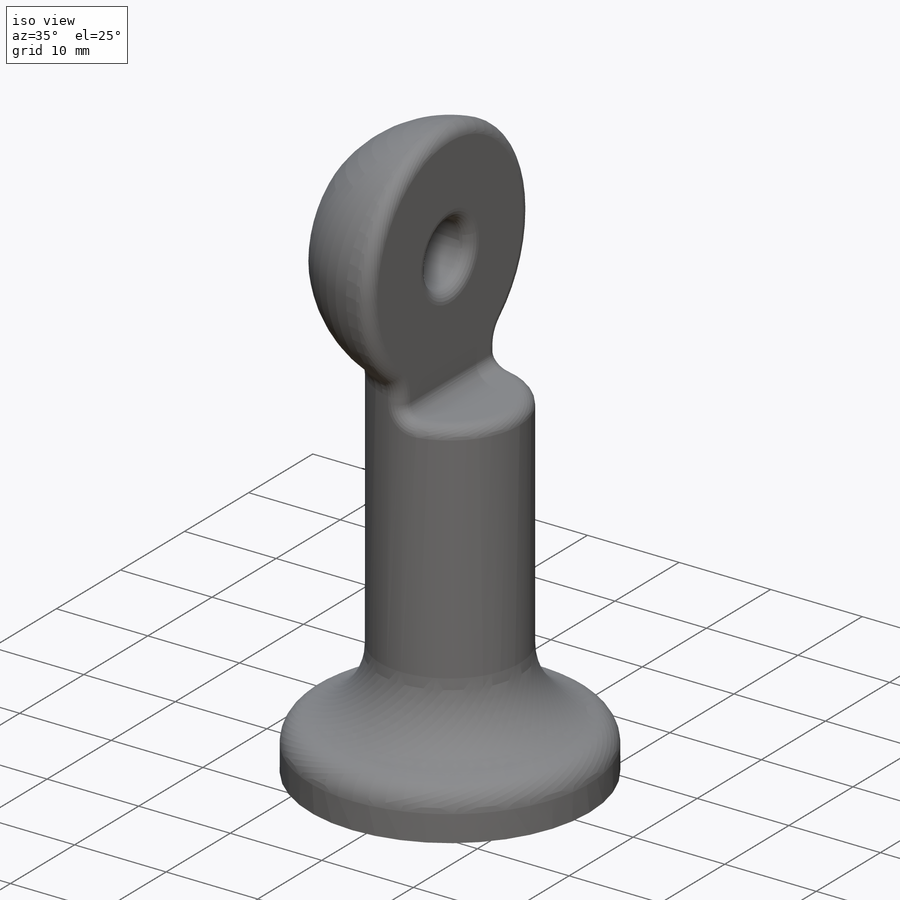
[diagram: iso view]
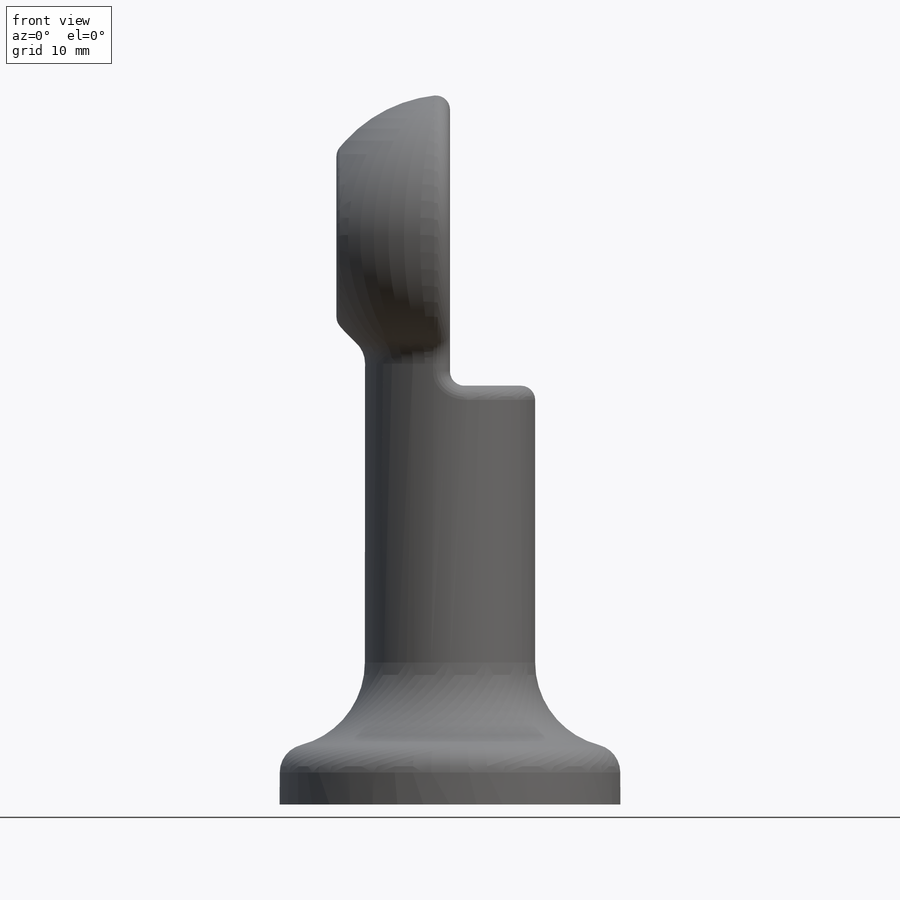
[diagram: front view]
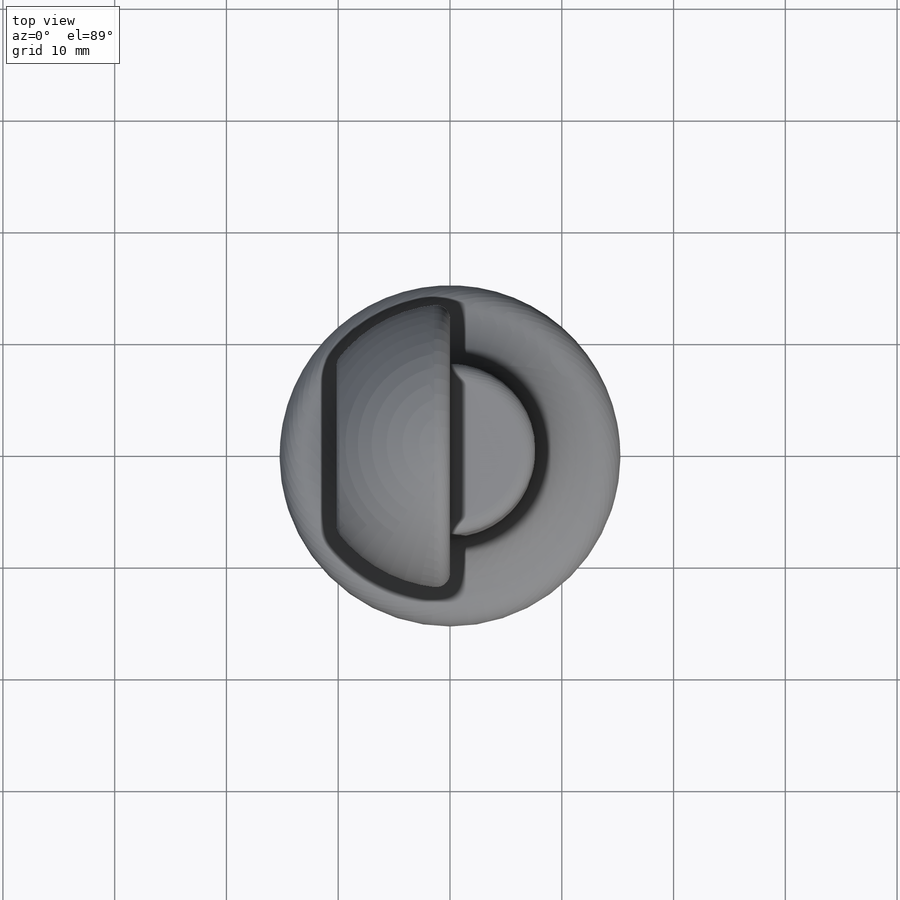
[diagram: top view]
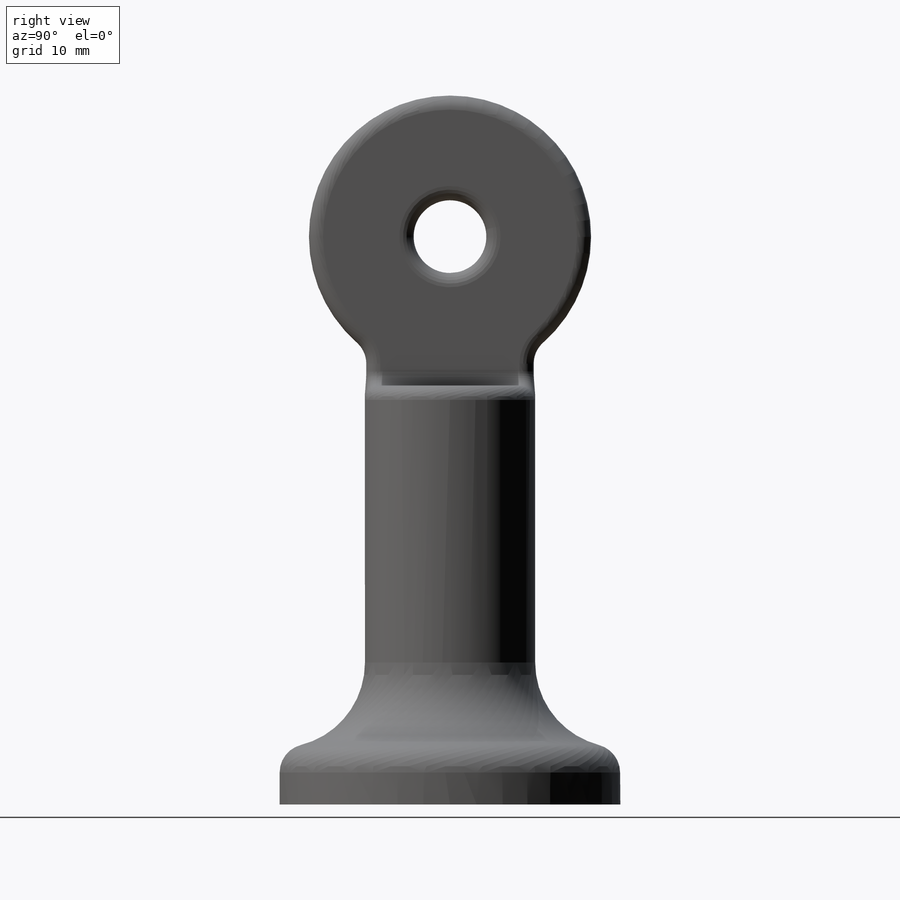
[diagram: right view]
SOLIDWORKS PART (.sldprt)
format: sldprt  version: not decoded by parser v0  size: 371,712 bytes
history: native  units: mm
features: sketch x8, extrude x2, boolean_combine x2, hole x2, fillet x2, material x1, revolve x1, plane x1, thread x1 (+15 scaffold rows collapsed)
feature tree (35):
  scaffold x15  (default folders/planes/origin — collapsed)
  material  "Material <not specified>"
  sketch  "Sketch1"  dims[c1.D5=12.7mm c1.D6=12.7mm c1.D7=7.62mm c1.D1=63.5mm c1.D2=33.02mm c1.D3=50.8mm c1.D4=78.74mm c2.D1=7.62mm c2.D2=63.5mm c2.D4=15.24mm c2.D6=12.7mm c2.D8=12.7mm]
  revolve  "Revolve1"  Angle=360deg
  sketch  "Sketch2"  dims[D1=50.8mm D2=25.4mm D3=13.335mm]
  extrude  "Boss-Extrude1"  Depth=25.4mm
  boolean_combine  "Combine1"
  sketch  "Sketch3"  dims[D1=50.8mm]
  hole  "#97 (0.0059) Diameter Hole3"  Diameter=6.5278mm Depth=15.24mm
  sketch  "Sketch9"  dims[D1=~5.263626mm]
  sketch  "Sketch8"  dims[hole-wizard template sketch: 60 standard entries collapsed; hole parameters kept: c18.Thru Hole Depth=15.24mm]
  plane  "Plane1"  Offset=10.16mm
  sketch  "Sketch10"  dims[D1=25.4mm D2=25.4mm]
  extrude  "Boss-Extrude2"  Depth=25.4mm
  boolean_combine  "Combine2"
  hole  "1/4-20 Tapped Hole1"  Diameter=5.1054mm Depth=19.05mm
  sketch  "Sketch16"
  sketch  "Sketch15"  dims[hole-wizard template sketch: 50 standard entries collapsed; hole parameters above]
  thread  "Hole Thread1"  Diameter=19.05mm  [1 undecoded]
  fillet  "Fillet1"  Radius=2.54mm
  fillet  "Fillet2"  Radius=1.27mm
decode coverage: 15 of 18 modeling features carry decoded parameters
note: ~ marks probable driven/reference dimensions
note: 1 parameter value undecoded
note: suppression state not decoded; provenance and decode notes live in map.json
